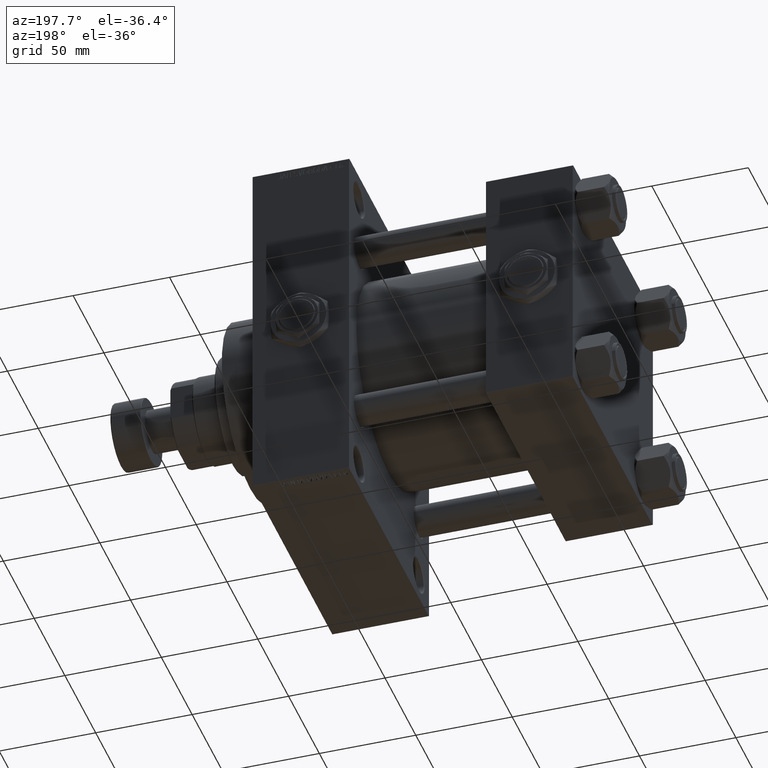
[diagram: clean part render]
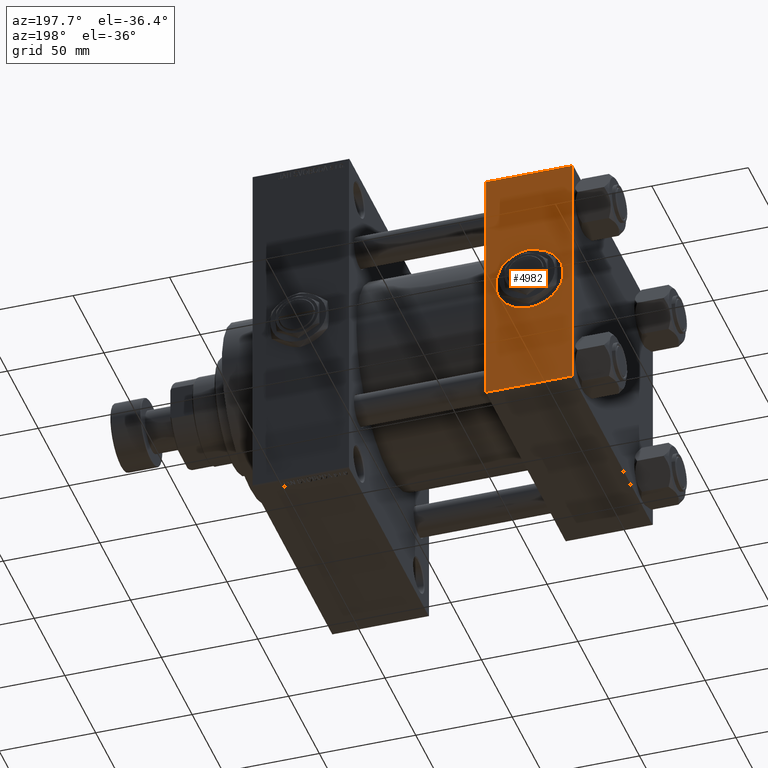
[diagram: same view with one face highlighted and labeled with its STEP entity id]
A machine part, auxiliary view. The second image highlights one B-rep face of the part: STEP entity #4982.
In plain terms, the highlighted planar face has unit normal (0, 1, 0).
Its self-contained STEP definition (entity closure, byte-faithful):
#1040 = CARTESIAN_POINT ( 'NONE',  ( 22.50000000000000000, 65.00000000000000000, 0.000000000000000000 ) ) ;
#2573 = DIRECTION ( 'NONE',  ( -0.000000000000000000, 1.000000000000000000, 0.000000000000000000 ) ) ;
#3831 = AXIS2_PLACEMENT_3D ( 'NONE', #15172, #38541, #26103 ) ;
#4839 = ORIENTED_EDGE ( 'NONE', *, *, #45225, .F. ) ;
#4908 = VECTOR ( 'NONE', #46885, 1000.000000000000000 ) ;
#4982 = ADVANCED_FACE ( 'NONE', ( #18074, #5641 ), #40436, .T. ) ;
#5279 = VECTOR ( 'NONE', #20431, 1000.000000000000000 ) ;
#5641 = FACE_OUTER_BOUND ( 'NONE', #17462, .T. ) ;
#6397 = CARTESIAN_POINT ( 'NONE',  ( 45.00000000000000000, 65.00000000000000000, 65.00000000000001421 ) ) ;
#6590 = LINE ( 'NONE', #45684, #29395 ) ;
#6795 = ORIENTED_EDGE ( 'NONE', *, *, #23720, .F. ) ;
#7204 = EDGE_CURVE ( 'NONE', #41771, #40572, #36074, .T. ) ;
#9396 = CARTESIAN_POINT ( 'NONE',  ( 45.00000000000000000, 65.00000000000000000, -64.49999999999995737 ) ) ;
#10904 = DIRECTION ( 'NONE',  ( 0.000000000000000000, 0.000000000000000000, -1.000000000000000000 ) ) ;
#11870 = CARTESIAN_POINT ( 'NONE',  ( 45.00000000000000000, 65.00000000000000000, -64.49999999999995737 ) ) ;
#12004 = CIRCLE ( 'NONE', #33079, 17.50000000000000000 ) ;
#12083 = VECTOR ( 'NONE', #32013, 1000.000000000000000 ) ;
#12249 = CARTESIAN_POINT ( 'NONE',  ( 22.50000000000000000, 65.00000000000000000, 17.50000000000000000 ) ) ;
#12478 = CARTESIAN_POINT ( 'NONE',  ( 45.00000000000000000, 65.00000000000000000, 64.49999999999998579 ) ) ;
#13360 = ORIENTED_EDGE ( 'NONE', *, *, #15304, .T. ) ;
#14067 = VERTEX_POINT ( 'NONE', #34478 ) ;
#15172 = CARTESIAN_POINT ( 'NONE',  ( 22.50000000000000000, 65.00000000000000000, 0.000000000000000000 ) ) ;
#15304 = EDGE_CURVE ( 'NONE', #40572, #16024, #39988, .T. ) ;
#16024 = VERTEX_POINT ( 'NONE', #9396 ) ;
#16157 = LINE ( 'NONE', #11870, #4908 ) ;
#16643 = ORIENTED_EDGE ( 'NONE', *, *, #19379, .F. ) ;
#17462 = EDGE_LOOP ( 'NONE', ( #13360, #31651, #4839, #22506 ) ) ;
#18074 = FACE_BOUND ( 'NONE', #27211, .T. ) ;
#18705 = CARTESIAN_POINT ( 'NONE',  ( 22.50000000000000355, 65.00000000000000000, -17.50000000000000000 ) ) ;
#19379 = EDGE_CURVE ( 'NONE', #29100, #47237, #37073, .T. ) ;
#20431 = DIRECTION ( 'NONE',  ( 0.000000000000000000, 0.000000000000000000, -1.000000000000000000 ) ) ;
#22506 = ORIENTED_EDGE ( 'NONE', *, *, #7204, .T. ) ;
#23720 = EDGE_CURVE ( 'NONE', #47237, #29100, #12004, .T. ) ;
#26103 = DIRECTION ( 'NONE',  ( 0.000000000000000000, 0.000000000000000000, 1.000000000000000000 ) ) ;
#27211 = EDGE_LOOP ( 'NONE', ( #16643, #6795 ) ) ;
#27976 = DIRECTION ( 'NONE',  ( 0.000000000000000000, 1.000000000000000000, 0.000000000000000000 ) ) ;
#29100 = VERTEX_POINT ( 'NONE', #12249 ) ;
#29395 = VECTOR ( 'NONE', #10904, 1000.000000000000000 ) ;
#31525 = DIRECTION ( 'NONE',  ( 0.000000000000000000, 0.000000000000000000, 1.000000000000000000 ) ) ;
#31651 = ORIENTED_EDGE ( 'NONE', *, *, #33975, .T. ) ;
#32013 = DIRECTION ( 'NONE',  ( 1.000000000000000000, 0.000000000000000000, 0.000000000000000000 ) ) ;
#32113 = CARTESIAN_POINT ( 'NONE',  ( 45.00000000000000000, 65.00000000000000000, 65.00000000000001421 ) ) ;
#33079 = AXIS2_PLACEMENT_3D ( 'NONE', #1040, #27976, #31525 ) ;
#33543 = DIRECTION ( 'NONE',  ( 0.000000000000000000, -0.000000000000000000, 1.000000000000000000 ) ) ;
#33975 = EDGE_CURVE ( 'NONE', #16024, #14067, #16157, .T. ) ;
#34478 = CARTESIAN_POINT ( 'NONE',  ( 0.000000000000000000, 65.00000000000000000, -64.49999999999995737 ) ) ;
#34898 = CARTESIAN_POINT ( 'NONE',  ( 0.000000000000000000, 65.00000000000000000, 64.49999999999998579 ) ) ;
#36074 = LINE ( 'NONE', #12478, #12083 ) ;
#37073 = CIRCLE ( 'NONE', #3831, 17.50000000000000000 ) ;
#37127 = AXIS2_PLACEMENT_3D ( 'NONE', #6397, #2573, #33543 ) ;
#38541 = DIRECTION ( 'NONE',  ( 0.000000000000000000, 1.000000000000000000, 0.000000000000000000 ) ) ;
#39988 = LINE ( 'NONE', #32113, #5279 ) ;
#40436 = PLANE ( 'NONE',  #37127 ) ;
#40572 = VERTEX_POINT ( 'NONE', #43358 ) ;
#41771 = VERTEX_POINT ( 'NONE', #34898 ) ;
#43358 = CARTESIAN_POINT ( 'NONE',  ( 45.00000000000000000, 65.00000000000000000, 64.49999999999998579 ) ) ;
#45225 = EDGE_CURVE ( 'NONE', #41771, #14067, #6590, .T. ) ;
#45684 = CARTESIAN_POINT ( 'NONE',  ( 0.000000000000000000, 65.00000000000000000, 65.00000000000001421 ) ) ;
#46885 = DIRECTION ( 'NONE',  ( -1.000000000000000000, 0.000000000000000000, 0.000000000000000000 ) ) ;
#47237 = VERTEX_POINT ( 'NONE', #18705 ) ;